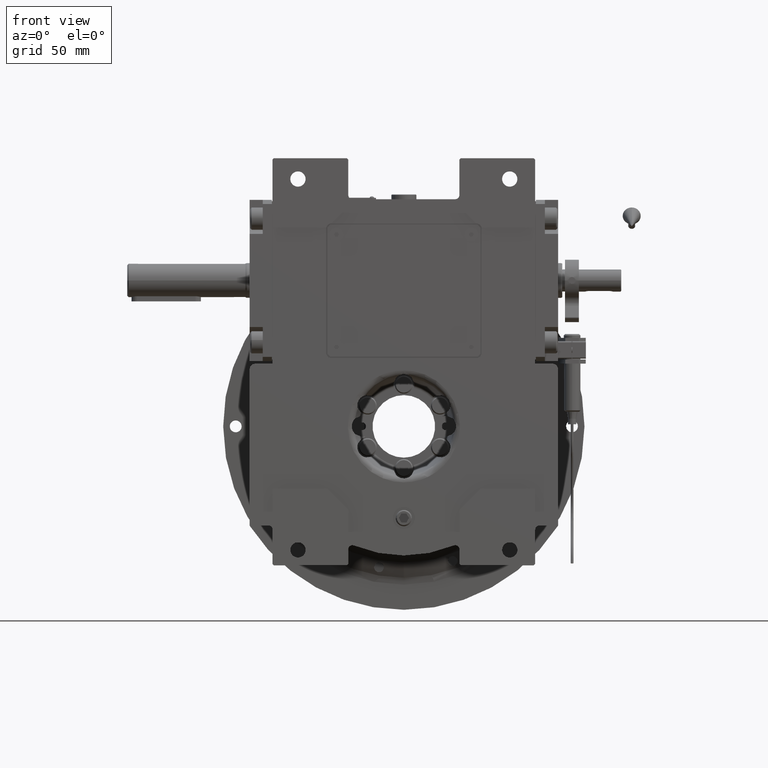
[diagram: clean part render]
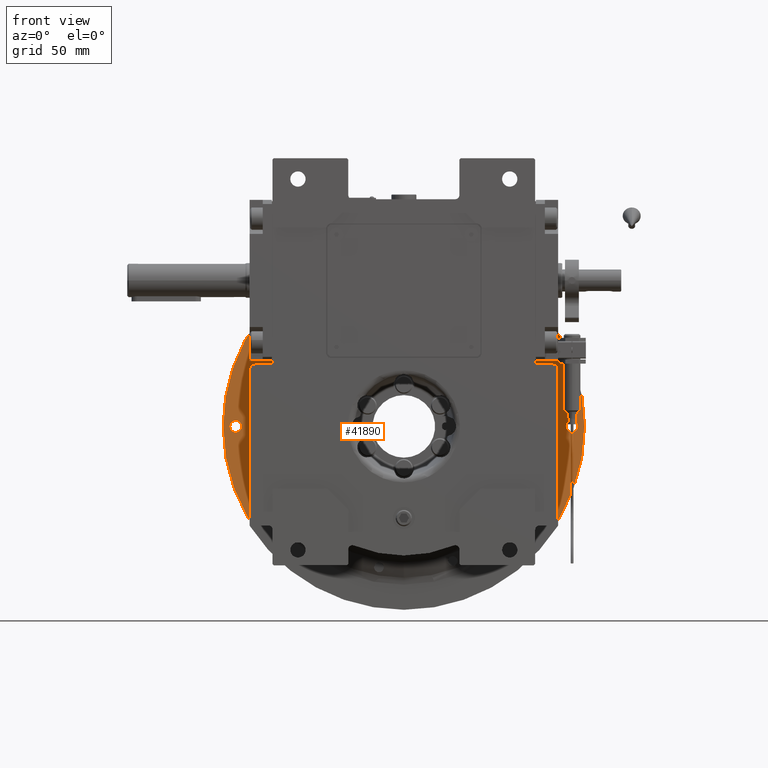
[diagram: same view with one face highlighted and labeled with its STEP entity id]
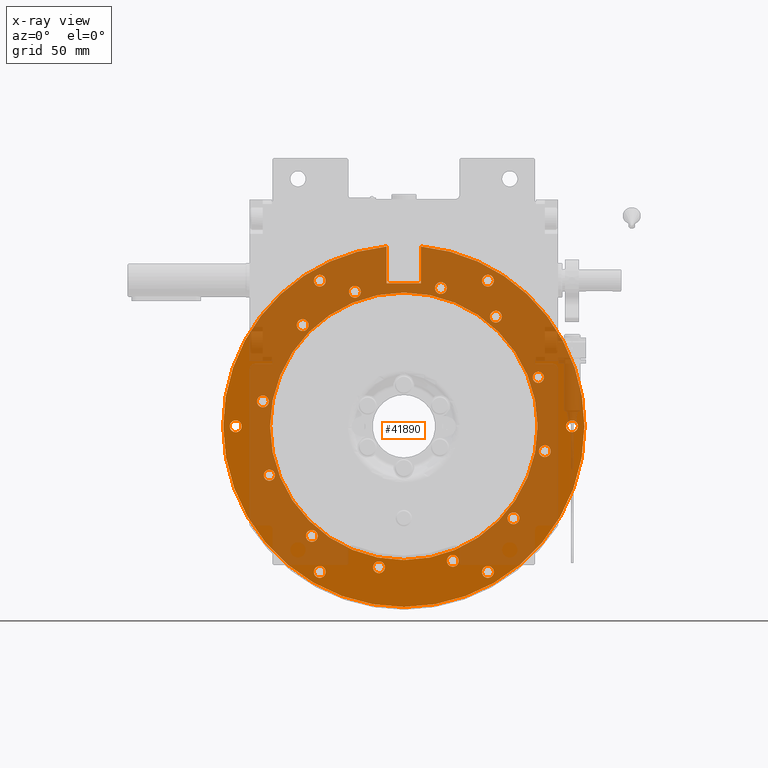
[diagram: x-ray of the same camera — body ghosted, the highlighted face saturated]
A machine part, front view. The second image highlights one B-rep face of the part: STEP entity #41890.
The next image is the same camera in x-ray: the body ghosted, the highlighted face saturated — about 69% of this face is hidden behind the body in this view.
In plain terms, the highlighted planar face has unit normal (0, 1, 0).
Its self-contained STEP definition (entity closure, byte-faithful):
#309 = ORIENTED_EDGE ( 'NONE', *, *, #68346, .T. ) ;
#544 = CARTESIAN_POINT ( 'NONE',  ( 121.0000000000000000, -8.881784197001244435E-16, 0.000000000000000000 ) ) ;
#609 = VERTEX_POINT ( 'NONE', #49818 ) ;
#833 = VERTEX_POINT ( 'NONE', #17245 ) ;
#916 = DIRECTION ( 'NONE',  ( 1.000000000000000000, 2.089831575764998299E-16, 0.000000000000000000 ) ) ;
#1162 = AXIS2_PLACEMENT_3D ( 'NONE', #4580, #27883, #14515 ) ;
#1177 = ORIENTED_EDGE ( 'NONE', *, *, #17498, .T. ) ;
#1193 = FACE_BOUND ( 'NONE', #34388, .T. ) ;
#1331 = CARTESIAN_POINT ( 'NONE',  ( 121.0000000000000000, 0.000000000000000000, 0.000000000000000000 ) ) ;
#1401 = ORIENTED_EDGE ( 'NONE', *, *, #65654, .F. ) ;
#1408 = VERTEX_POINT ( 'NONE', #64659 ) ;
#1474 = AXIS2_PLACEMENT_3D ( 'NONE', #53009, #48023, #24303 ) ;
#1929 = FACE_BOUND ( 'NONE', #7233, .T. ) ;
#1979 = DIRECTION ( 'NONE',  ( 0.000000000000000000, 0.000000000000000000, 1.000000000000000000 ) ) ;
#2312 = VERTEX_POINT ( 'NONE', #19580 ) ;
#2687 = DIRECTION ( 'NONE',  ( 1.000000000000000000, 0.000000000000000000, 0.000000000000000000 ) ) ;
#2734 = CARTESIAN_POINT ( 'NONE',  ( 66.20712379771359224, -78.90257764125479412, 0.000000000000000000 ) ) ;
#3351 = DIRECTION ( 'NONE',  ( 0.000000000000000000, 0.000000000000000000, 1.000000000000000000 ) ) ;
#3364 = ORIENTED_EDGE ( 'NONE', *, *, #24863, .T. ) ;
#3469 = DIRECTION ( 'NONE',  ( 0.000000000000000000, 0.000000000000000000, 1.000000000000000000 ) ) ;
#3835 = ORIENTED_EDGE ( 'NONE', *, *, #16696, .T. ) ;
#3968 = DIRECTION ( 'NONE',  ( -0.09507082380237159847, -0.9954705110959030101, 0.000000000000000000 ) ) ;
#4088 = AXIS2_PLACEMENT_3D ( 'NONE', #63733, #57995, #33118 ) ;
#4159 = DIRECTION ( 'NONE',  ( 0.000000000000000000, 0.000000000000000000, 1.000000000000000000 ) ) ;
#4191 = AXIS2_PLACEMENT_3D ( 'NONE', #30605, #60458, #48231 ) ;
#4513 = CIRCLE ( 'NONE', #30328, 4.250000000000003553 ) ;
#4580 = CARTESIAN_POINT ( 'NONE',  ( 78.90257764125479412, 66.20712379771359224, 0.000000000000000000 ) ) ;
#4610 = CARTESIAN_POINT ( 'NONE',  ( -121.0000000000000000, 2.220446049250314974E-14, 0.000000000000000000 ) ) ;
#4624 = CIRCLE ( 'NONE', #43738, 4.250000000000000000 ) ;
#4634 = CARTESIAN_POINT ( 'NONE',  ( 12.35920709430827813, -102.9000000000000057, 0.000000000000000000 ) ) ;
#4709 = CIRCLE ( 'NONE', #47487, 4.250000000000003553 ) ;
#4972 = VERTEX_POINT ( 'NONE', #50876 ) ;
#5226 = CARTESIAN_POINT ( 'NONE',  ( -66.20712379771349276, 78.90257764125469464, 0.000000000000000000 ) ) ;
#5251 = CARTESIAN_POINT ( 'NONE',  ( -61.95712379771349276, 78.90257764125469464, 0.000000000000000000 ) ) ;
#5284 = CIRCLE ( 'NONE', #65167, 4.000000000000003553 ) ;
#5441 = EDGE_CURVE ( 'NONE', #44427, #66545, #48637, .T. ) ;
#5444 = AXIS2_PLACEMENT_3D ( 'NONE', #70715, #48850, #41613 ) ;
#5508 = CARTESIAN_POINT ( 'NONE',  ( 26.65836164555969745, -99.49036010777399497, 0.000000000000000000 ) ) ;
#5609 = EDGE_CURVE ( 'NONE', #44389, #58014, #31188, .T. ) ;
#5739 = CIRCLE ( 'NONE', #36286, 4.250000000000003553 ) ;
#5792 = AXIS2_PLACEMENT_3D ( 'NONE', #10946, #45048, #10562 ) ;
#5894 = EDGE_CURVE ( 'NONE', #5918, #21517, #46384, .T. ) ;
#5918 = VERTEX_POINT ( 'NONE', #12390 ) ;
#6185 = CIRCLE ( 'NONE', #24523, 96.25000000000000000 ) ;
#6203 = AXIS2_PLACEMENT_3D ( 'NONE', #73087, #21034, #2687 ) ;
#6231 = CARTESIAN_POINT ( 'NONE',  ( 83.15257764125480833, 66.20712379771359224, 0.000000000000000000 ) ) ;
#6300 = ORIENTED_EDGE ( 'NONE', *, *, #41255, .T. ) ;
#6492 = CIRCLE ( 'NONE', #4088, 4.250000000000003553 ) ;
#6552 = FACE_BOUND ( 'NONE', #44873, .T. ) ;
#6659 = EDGE_CURVE ( 'NONE', #57508, #47766, #4709, .T. ) ;
#6794 = CARTESIAN_POINT ( 'NONE',  ( 22.40836164555969745, -99.49036010777399497, 0.000000000000000000 ) ) ;
#6859 = CIRCLE ( 'NONE', #19094, 4.250000000000003553 ) ;
#7064 = AXIS2_PLACEMENT_3D ( 'NONE', #49855, #21915, #20780 ) ;
#7091 = ORIENTED_EDGE ( 'NONE', *, *, #65294, .F. ) ;
#7113 = ORIENTED_EDGE ( 'NONE', *, *, #54486, .T. ) ;
#7233 = EDGE_LOOP ( 'NONE', ( #62519, #309 ) ) ;
#7822 = VERTEX_POINT ( 'NONE', #6231 ) ;
#7865 = DIRECTION ( 'NONE',  ( 0.000000000000000000, 0.000000000000000000, 1.000000000000000000 ) ) ;
#7935 = EDGE_CURVE ( 'NONE', #42597, #48542, #72099, .T. ) ;
#8457 = DIRECTION ( 'NONE',  ( 1.000000000000000000, 0.000000000000000000, 0.000000000000000000 ) ) ;
#8466 = VERTEX_POINT ( 'NONE', #13713 ) ;
#8584 = EDGE_CURVE ( 'NONE', #609, #1408, #6185, .T. ) ;
#9156 = CIRCLE ( 'NONE', #66592, 4.250000000000003553 ) ;
#9495 = CARTESIAN_POINT ( 'NONE',  ( 60.50000000000000000, -104.7890738579170034, 0.000000000000000000 ) ) ;
#9546 = DIRECTION ( 'NONE',  ( 1.000000000000000000, 0.000000000000000000, 0.000000000000000000 ) ) ;
#9639 = VERTEX_POINT ( 'NONE', #13410 ) ;
#9820 = DIRECTION ( 'NONE',  ( -1.000000000000000000, 0.000000000000000000, 0.000000000000000000 ) ) ;
#9879 = ORIENTED_EDGE ( 'NONE', *, *, #62076, .T. ) ;
#10030 = CARTESIAN_POINT ( 'NONE',  ( -12.35920709430827813, -129.4111664424673620, 0.000000000000000000 ) ) ;
#10035 = EDGE_LOOP ( 'NONE', ( #3835, #70579 ) ) ;
#10083 = ORIENTED_EDGE ( 'NONE', *, *, #62770, .T. ) ;
#10562 = DIRECTION ( 'NONE',  ( 1.000000000000000000, 0.000000000000000000, 0.000000000000000000 ) ) ;
#10944 = DIRECTION ( 'NONE',  ( 0.000000000000000000, 0.000000000000000000, 1.000000000000000000 ) ) ;
#10946 = CARTESIAN_POINT ( 'NONE',  ( -101.4351985602574047, -17.88576229969384812, 0.000000000000000000 ) ) ;
#11483 = AXIS2_PLACEMENT_3D ( 'NONE', #12928, #24438, #30895 ) ;
#11487 = CARTESIAN_POINT ( 'NONE',  ( -22.13576229969384812, 101.4351985602574047, 0.000000000000000000 ) ) ;
#11527 = DIRECTION ( 'NONE',  ( 1.000000000000000000, 0.000000000000000000, 0.000000000000000000 ) ) ;
#11551 = EDGE_LOOP ( 'NONE', ( #54832, #53223 ) ) ;
#11852 = CARTESIAN_POINT ( 'NONE',  ( 12.35920709430829945, -129.4111664424673620, 0.000000000000000000 ) ) ;
#11854 = AXIS2_PLACEMENT_3D ( 'NONE', #47890, #35623, #58995 ) ;
#12260 = DIRECTION ( 'NONE',  ( 1.000000000000000000, 0.000000000000000000, 0.000000000000000000 ) ) ;
#12390 = CARTESIAN_POINT ( 'NONE',  ( 130.0000000000000000, 0.000000000000000000, 0.000000000000000000 ) ) ;
#12649 = FACE_BOUND ( 'NONE', #69049, .T. ) ;
#12749 = EDGE_LOOP ( 'NONE', ( #73496, #3364, #62085, #70427, #56320, #29260 ) ) ;
#12886 = ORIENTED_EDGE ( 'NONE', *, *, #15881, .T. ) ;
#12928 = CARTESIAN_POINT ( 'NONE',  ( 101.4351985602574047, 17.88576229969384812, 0.000000000000000000 ) ) ;
#13209 = VERTEX_POINT ( 'NONE', #11487 ) ;
#13381 = FACE_BOUND ( 'NONE', #24316, .T. ) ;
#13410 = CARTESIAN_POINT ( 'NONE',  ( 30.97807476254390124, 96.78833994094861737, 0.000000000000000000 ) ) ;
#13632 = VERTEX_POINT ( 'NONE', #31994 ) ;
#13675 = CARTESIAN_POINT ( 'NONE',  ( 26.65836164555969745, -99.49036010777399497, 0.000000000000000000 ) ) ;
#13713 = CARTESIAN_POINT ( 'NONE',  ( -64.75000000000000000, 104.7890738579170034, 0.000000000000000000 ) ) ;
#13725 = CARTESIAN_POINT ( 'NONE',  ( -12.35920709430827813, -102.9000000000000057, 0.000000000000000000 ) ) ;
#14515 = DIRECTION ( 'NONE',  ( 1.000000000000000000, 0.000000000000000000, 0.000000000000000000 ) ) ;
#14719 = EDGE_LOOP ( 'NONE', ( #32247, #31600 ) ) ;
#15096 = EDGE_CURVE ( 'NONE', #48542, #42597, #9156, .T. ) ;
#15544 = VERTEX_POINT ( 'NONE', #57837 ) ;
#15576 = VERTEX_POINT ( 'NONE', #40222 ) ;
#15784 = EDGE_LOOP ( 'NONE', ( #12886, #41016 ) ) ;
#15876 = CIRCLE ( 'NONE', #74498, 4.250000000000000000 ) ;
#15881 = EDGE_CURVE ( 'NONE', #69611, #39531, #33601, .T. ) ;
#15994 = DIRECTION ( 'NONE',  ( 0.000000000000000000, 0.000000000000000000, 1.000000000000000000 ) ) ;
#15997 = CARTESIAN_POINT ( 'NONE',  ( 0.000000000000000000, 0.000000000000000000, 0.000000000000000000 ) ) ;
#16236 = EDGE_LOOP ( 'NONE', ( #40526, #53640 ) ) ;
#16409 = VERTEX_POINT ( 'NONE', #20948 ) ;
#16589 = DIRECTION ( 'NONE',  ( 1.000000000000000000, 0.000000000000000000, 0.000000000000000000 ) ) ;
#16696 = EDGE_CURVE ( 'NONE', #47766, #57508, #6859, .T. ) ;
#16847 = ORIENTED_EDGE ( 'NONE', *, *, #15096, .T. ) ;
#17245 = CARTESIAN_POINT ( 'NONE',  ( -56.25000000000000000, 104.7890738579170034, 0.000000000000000000 ) ) ;
#17252 = CARTESIAN_POINT ( 'NONE',  ( -60.50000000000000000, 104.7890738579170034, 0.000000000000000000 ) ) ;
#17277 = DIRECTION ( 'NONE',  ( 0.000000000000000000, 0.000000000000000000, 1.000000000000000000 ) ) ;
#17360 = CARTESIAN_POINT ( 'NONE',  ( 35.22807476254389769, 96.78833994094861737, 0.000000000000000000 ) ) ;
#17498 = EDGE_CURVE ( 'NONE', #833, #8466, #26456, .T. ) ;
#17633 = CARTESIAN_POINT ( 'NONE',  ( 56.25000000000000000, -104.7890738579170034, 0.000000000000000000 ) ) ;
#17662 = CIRCLE ( 'NONE', #5444, 4.000000000000003553 ) ;
#17723 = VERTEX_POINT ( 'NONE', #5251 ) ;
#17916 = CARTESIAN_POINT ( 'NONE',  ( 74.65257764125480833, 66.20712379771359224, 0.000000000000000000 ) ) ;
#17933 = CIRCLE ( 'NONE', #37463, 130.0000000000000000 ) ;
#18411 = FACE_BOUND ( 'NONE', #57361, .T. ) ;
#18706 = DIRECTION ( 'NONE',  ( 0.000000000000000000, 0.000000000000000000, 1.000000000000000000 ) ) ;
#18761 = CARTESIAN_POINT ( 'NONE',  ( 60.50000000000000000, 104.7890738579170034, 0.000000000000000000 ) ) ;
#18790 = FACE_BOUND ( 'NONE', #11551, .T. ) ;
#18978 = DIRECTION ( 'NONE',  ( 1.000000000000000000, -5.224578939412495427E-15, 0.000000000000000000 ) ) ;
#19094 = AXIS2_PLACEMENT_3D ( 'NONE', #70671, #7865, #18978 ) ;
#19155 = FACE_BOUND ( 'NONE', #15784, .T. ) ;
#19580 = CARTESIAN_POINT ( 'NONE',  ( -100.7883399409486032, 35.22807476254389769, 0.000000000000000000 ) ) ;
#19937 = VECTOR ( 'NONE', #36928, 1000.000000000000000 ) ;
#20124 = AXIS2_PLACEMENT_3D ( 'NONE', #61998, #3469, #34016 ) ;
#20209 = CARTESIAN_POINT ( 'NONE',  ( -60.50000000000000000, 104.7890738579170034, 0.000000000000000000 ) ) ;
#20503 = CIRCLE ( 'NONE', #7064, 4.250000000000003553 ) ;
#20706 = EDGE_CURVE ( 'NONE', #66545, #44427, #71299, .T. ) ;
#20761 = ORIENTED_EDGE ( 'NONE', *, *, #37771, .F. ) ;
#20780 = DIRECTION ( 'NONE',  ( 1.000000000000000000, 0.000000000000000000, 0.000000000000000000 ) ) ;
#20871 = VECTOR ( 'NONE', #40427, 1000.000000000000000 ) ;
#20948 = CARTESIAN_POINT ( 'NONE',  ( 105.6851985602573905, 17.88576229969384812, 0.000000000000000000 ) ) ;
#21034 = DIRECTION ( 'NONE',  ( 0.000000000000000000, 0.000000000000000000, 1.000000000000000000 ) ) ;
#21276 = AXIS2_PLACEMENT_3D ( 'NONE', #13675, #31265, #49279 ) ;
#21377 = VERTEX_POINT ( 'NONE', #38681 ) ;
#21517 = VERTEX_POINT ( 'NONE', #11852 ) ;
#21563 = EDGE_CURVE ( 'NONE', #42638, #22704, #72533, .T. ) ;
#21583 = AXIS2_PLACEMENT_3D ( 'NONE', #26038, #31379, #32901 ) ;
#21915 = DIRECTION ( 'NONE',  ( 0.000000000000000000, 0.000000000000000000, 1.000000000000000000 ) ) ;
#21990 = DIRECTION ( 'NONE',  ( 0.000000000000000000, 0.000000000000000000, 1.000000000000000000 ) ) ;
#22033 = DIRECTION ( 'NONE',  ( 0.000000000000000000, 0.000000000000000000, 1.000000000000000000 ) ) ;
#22139 = EDGE_LOOP ( 'NONE', ( #72827, #40682 ) ) ;
#22159 = ORIENTED_EDGE ( 'NONE', *, *, #7935, .T. ) ;
#22350 = CARTESIAN_POINT ( 'NONE',  ( -96.78833994094861737, 35.22807476254389769, 0.000000000000000000 ) ) ;
#22704 = VERTEX_POINT ( 'NONE', #24501 ) ;
#22837 = CARTESIAN_POINT ( 'NONE',  ( 12.35920709430827813, -129.4111664424673620, 0.000000000000000000 ) ) ;
#23832 = ORIENTED_EDGE ( 'NONE', *, *, #66266, .T. ) ;
#23961 = CARTESIAN_POINT ( 'NONE',  ( 70.45712379771350697, -78.90257764125479412, 0.000000000000000000 ) ) ;
#24303 = DIRECTION ( 'NONE',  ( -1.000000000000000000, 0.000000000000000000, 0.000000000000000000 ) ) ;
#24316 = EDGE_LOOP ( 'NONE', ( #30116, #56663 ) ) ;
#24438 = DIRECTION ( 'NONE',  ( 0.000000000000000000, 0.000000000000000000, 1.000000000000000000 ) ) ;
#24501 = CARTESIAN_POINT ( 'NONE',  ( 56.25000000000000000, 104.7890738579170034, 0.000000000000000000 ) ) ;
#24520 = FACE_BOUND ( 'NONE', #37872, .T. ) ;
#24523 = AXIS2_PLACEMENT_3D ( 'NONE', #15997, #4159, #63065 ) ;
#24723 = DIRECTION ( 'NONE',  ( 0.000000000000000000, 0.000000000000000000, 1.000000000000000000 ) ) ;
#24863 = EDGE_CURVE ( 'NONE', #44389, #4972, #32609, .T. ) ;
#25244 = FACE_OUTER_BOUND ( 'NONE', #12749, .T. ) ;
#25294 = CARTESIAN_POINT ( 'NONE',  ( -17.88576229969384812, 101.4351985602574047, 0.000000000000000000 ) ) ;
#25381 = DIRECTION ( 'NONE',  ( -1.000000000000000000, 0.000000000000000000, 0.000000000000000000 ) ) ;
#25382 = CARTESIAN_POINT ( 'NONE',  ( -97.18519856025739045, -17.88576229969384812, 0.000000000000000000 ) ) ;
#25502 = CARTESIAN_POINT ( 'NONE',  ( 64.75000000000000000, -104.7890738579170034, 0.000000000000000000 ) ) ;
#25668 = AXIS2_PLACEMENT_3D ( 'NONE', #5226, #10944, #28536 ) ;
#26038 = CARTESIAN_POINT ( 'NONE',  ( -72.83199846221440055, -72.83199846221440055, 0.000000000000000000 ) ) ;
#26172 = VERTEX_POINT ( 'NONE', #39599 ) ;
#26243 = DIRECTION ( 'NONE',  ( -1.000000000000000000, 0.000000000000000000, 0.000000000000000000 ) ) ;
#26414 = EDGE_CURVE ( 'NONE', #56164, #61758, #4513, .T. ) ;
#26456 = CIRCLE ( 'NONE', #50871, 4.250000000000003553 ) ;
#26873 = AXIS2_PLACEMENT_3D ( 'NONE', #54629, #3351, #50392 ) ;
#27332 = ORIENTED_EDGE ( 'NONE', *, *, #52912, .T. ) ;
#27479 = CIRCLE ( 'NONE', #20124, 4.250000000000003553 ) ;
#27513 = EDGE_CURVE ( 'NONE', #9639, #61720, #4624, .T. ) ;
#27610 = VERTEX_POINT ( 'NONE', #75196 ) ;
#27883 = DIRECTION ( 'NONE',  ( 0.000000000000000000, 0.000000000000000000, 1.000000000000000000 ) ) ;
#28224 = ORIENTED_EDGE ( 'NONE', *, *, #57095, .F. ) ;
#28337 = CARTESIAN_POINT ( 'NONE',  ( 61.95712379771349276, -78.90257764125479412, 0.000000000000000000 ) ) ;
#28378 = DIRECTION ( 'NONE',  ( 0.000000000000000000, 0.000000000000000000, -1.000000000000000000 ) ) ;
#28536 = DIRECTION ( 'NONE',  ( 1.000000000000000000, 0.000000000000000000, 0.000000000000000000 ) ) ;
#28834 = CARTESIAN_POINT ( 'NONE',  ( 2.309263891220324973E-14, 2.248201624865940811E-15, 0.000000000000000000 ) ) ;
#28986 = VERTEX_POINT ( 'NONE', #36832 ) ;
#29260 = ORIENTED_EDGE ( 'NONE', *, *, #37381, .T. ) ;
#29315 = LINE ( 'NONE', #22837, #20871 ) ;
#29384 = EDGE_LOOP ( 'NONE', ( #75533, #33021 ) ) ;
#29406 = CIRCLE ( 'NONE', #34317, 4.250000000000003553 ) ;
#29460 = DIRECTION ( 'NONE',  ( 0.000000000000000000, 0.000000000000000000, 1.000000000000000000 ) ) ;
#29471 = DIRECTION ( 'NONE',  ( 0.000000000000000000, 0.000000000000000000, 1.000000000000000000 ) ) ;
#29729 = CIRCLE ( 'NONE', #72525, 4.000000000000003553 ) ;
#29866 = FACE_BOUND ( 'NONE', #14719, .T. ) ;
#29884 = CARTESIAN_POINT ( 'NONE',  ( 0.000000000000000000, 0.000000000000000000, 0.000000000000000000 ) ) ;
#29912 = EDGE_CURVE ( 'NONE', #60338, #15544, #74528, .T. ) ;
#30116 = ORIENTED_EDGE ( 'NONE', *, *, #63107, .T. ) ;
#30328 = AXIS2_PLACEMENT_3D ( 'NONE', #1331, #42630, #25381 ) ;
#30605 = CARTESIAN_POINT ( 'NONE',  ( -101.4351985602574047, -17.88576229969384812, 0.000000000000000000 ) ) ;
#30895 = DIRECTION ( 'NONE',  ( -1.000000000000000000, 0.000000000000000000, 0.000000000000000000 ) ) ;
#31118 = CARTESIAN_POINT ( 'NONE',  ( -125.2500000000000000, 7.408868440625380834E-15, 0.000000000000000000 ) ) ;
#31136 = DIRECTION ( 'NONE',  ( 0.000000000000000000, 0.000000000000000000, 1.000000000000000000 ) ) ;
#31183 = EDGE_CURVE ( 'NONE', #13209, #48296, #41660, .T. ) ;
#31188 = LINE ( 'NONE', #72169, #19937 ) ;
#31265 = DIRECTION ( 'NONE',  ( 0.000000000000000000, 0.000000000000000000, 1.000000000000000000 ) ) ;
#31345 = FACE_BOUND ( 'NONE', #74963, .T. ) ;
#31379 = DIRECTION ( 'NONE',  ( 0.000000000000000000, 0.000000000000000000, 1.000000000000000000 ) ) ;
#31600 = ORIENTED_EDGE ( 'NONE', *, *, #66445, .T. ) ;
#31994 = CARTESIAN_POINT ( 'NONE',  ( -92.78833994094860316, 35.22807476254389769, 0.000000000000000000 ) ) ;
#32247 = ORIENTED_EDGE ( 'NONE', *, *, #74457, .T. ) ;
#32556 = AXIS2_PLACEMENT_3D ( 'NONE', #32600, #28378, #62483 ) ;
#32593 = VERTEX_POINT ( 'NONE', #62518 ) ;
#32600 = CARTESIAN_POINT ( 'NONE',  ( 2.309263891220324973E-14, 2.248201624865940811E-15, 0.000000000000000000 ) ) ;
#32609 = CIRCLE ( 'NONE', #32556, 130.0000000000000000 ) ;
#32901 = DIRECTION ( 'NONE',  ( -1.000000000000000000, 0.000000000000000000, 0.000000000000000000 ) ) ;
#33021 = ORIENTED_EDGE ( 'NONE', *, *, #5441, .T. ) ;
#33118 = DIRECTION ( 'NONE',  ( 1.000000000000000000, 0.000000000000000000, 0.000000000000000000 ) ) ;
#33494 = CARTESIAN_POINT ( 'NONE',  ( -116.7500000000000000, 7.582360070504590539E-15, 0.000000000000000000 ) ) ;
#33601 = CIRCLE ( 'NONE', #61760, 4.250000000000003553 ) ;
#33955 = CARTESIAN_POINT ( 'NONE',  ( -35.22807476254394743, -96.78833994094861737, 0.000000000000000000 ) ) ;
#34014 = VERTEX_POINT ( 'NONE', #25502 ) ;
#34016 = DIRECTION ( 'NONE',  ( -1.000000000000000000, 0.000000000000000000, 0.000000000000000000 ) ) ;
#34121 = ORIENTED_EDGE ( 'NONE', *, *, #69296, .T. ) ;
#34317 = AXIS2_PLACEMENT_3D ( 'NONE', #17360, #21990, #68691 ) ;
#34388 = EDGE_LOOP ( 'NONE', ( #7091, #20761 ) ) ;
#34845 = CARTESIAN_POINT ( 'NONE',  ( 125.2500000000000000, -2.296131183662585222E-15, 0.000000000000000000 ) ) ;
#35249 = AXIS2_PLACEMENT_3D ( 'NONE', #64555, #24723, #48079 ) ;
#35428 = CIRCLE ( 'NONE', #63572, 4.250000000000000000 ) ;
#35623 = DIRECTION ( 'NONE',  ( 0.000000000000000000, 0.000000000000000000, -1.000000000000000000 ) ) ;
#35801 = AXIS2_PLACEMENT_3D ( 'NONE', #33955, #15994, #39325 ) ;
#35901 = CIRCLE ( 'NONE', #71330, 4.250000000000003553 ) ;
#35977 = FACE_BOUND ( 'NONE', #10035, .T. ) ;
#36149 = DIRECTION ( 'NONE',  ( 1.000000000000000000, 0.000000000000000000, 0.000000000000000000 ) ) ;
#36286 = AXIS2_PLACEMENT_3D ( 'NONE', #53011, #31136, #54509 ) ;
#36623 = AXIS2_PLACEMENT_3D ( 'NONE', #2734, #1979, #8457 ) ;
#36832 = CARTESIAN_POINT ( 'NONE',  ( 12.35920709430827813, -102.9000000000000057, 0.000000000000000000 ) ) ;
#36928 = DIRECTION ( 'NONE',  ( 0.000000000000000000, 1.000000000000000000, 0.000000000000000000 ) ) ;
#37300 = VERTEX_POINT ( 'NONE', #56794 ) ;
#37381 = EDGE_CURVE ( 'NONE', #28986, #58014, #39426, .T. ) ;
#37463 = AXIS2_PLACEMENT_3D ( 'NONE', #73968, #74347, #3968 ) ;
#37771 = EDGE_CURVE ( 'NONE', #15576, #21377, #65646, .T. ) ;
#37814 = DIRECTION ( 'NONE',  ( 0.000000000000000000, 0.000000000000000000, 1.000000000000000000 ) ) ;
#37872 = EDGE_LOOP ( 'NONE', ( #1401, #28224 ) ) ;
#38518 = CARTESIAN_POINT ( 'NONE',  ( -56.25000000000000000, -104.7890738579170034, 0.000000000000000000 ) ) ;
#38681 = CARTESIAN_POINT ( 'NONE',  ( 100.7883399409486032, -35.22807476254389769, 0.000000000000000000 ) ) ;
#38757 = EDGE_CURVE ( 'NONE', #15544, #60338, #20503, .T. ) ;
#38758 = CIRCLE ( 'NONE', #5792, 4.250000000000003553 ) ;
#39296 = CIRCLE ( 'NONE', #1474, 4.250000000000003553 ) ;
#39325 = DIRECTION ( 'NONE',  ( 1.000000000000000000, 0.000000000000000000, 0.000000000000000000 ) ) ;
#39426 = LINE ( 'NONE', #4634, #64373 ) ;
#39531 = VERTEX_POINT ( 'NONE', #46109 ) ;
#39599 = CARTESIAN_POINT ( 'NONE',  ( -105.6851985602573905, -17.88576229969384812, 0.000000000000000000 ) ) ;
#39611 = CIRCLE ( 'NONE', #73872, 96.25000000000000000 ) ;
#40222 = CARTESIAN_POINT ( 'NONE',  ( 92.78833994094860316, -35.22807476254389769, 0.000000000000000000 ) ) ;
#40401 = DIRECTION ( 'NONE',  ( 0.000000000000000000, 0.000000000000000000, -1.000000000000000000 ) ) ;
#40427 = DIRECTION ( 'NONE',  ( 0.000000000000000000, 1.000000000000000000, 0.000000000000000000 ) ) ;
#40526 = ORIENTED_EDGE ( 'NONE', *, *, #59785, .T. ) ;
#40682 = ORIENTED_EDGE ( 'NONE', *, *, #29912, .T. ) ;
#40826 = CIRCLE ( 'NONE', #4191, 4.250000000000003553 ) ;
#41016 = ORIENTED_EDGE ( 'NONE', *, *, #58914, .T. ) ;
#41116 = EDGE_CURVE ( 'NONE', #55405, #7822, #48907, .T. ) ;
#41255 = EDGE_CURVE ( 'NONE', #17723, #32593, #58696, .T. ) ;
#41613 = DIRECTION ( 'NONE',  ( -1.000000000000000000, 0.000000000000000000, 0.000000000000000000 ) ) ;
#41660 = CIRCLE ( 'NONE', #58753, 4.250000000000000000 ) ;
#41890 = ADVANCED_FACE ( 'NONE', ( #31345, #1193, #24520, #58978, #13381, #6552, #29866, #47876, #47498, #18411, #53981, #65105, #1929, #71582, #18790, #65481, #12649, #35977, #19155, #25244 ), #48603, .F. ) ;
#41996 = ORIENTED_EDGE ( 'NONE', *, *, #21563, .T. ) ;
#42597 = VERTEX_POINT ( 'NONE', #23961 ) ;
#42630 = DIRECTION ( 'NONE',  ( 0.000000000000000000, 0.000000000000000000, 1.000000000000000000 ) ) ;
#42638 = VERTEX_POINT ( 'NONE', #43449 ) ;
#43449 = CARTESIAN_POINT ( 'NONE',  ( 64.75000000000000000, 104.7890738579170034, 0.000000000000000000 ) ) ;
#43631 = EDGE_CURVE ( 'NONE', #21517, #28986, #29315, .T. ) ;
#43738 = AXIS2_PLACEMENT_3D ( 'NONE', #74444, #22033, #26243 ) ;
#44389 = VERTEX_POINT ( 'NONE', #10030 ) ;
#44427 = VERTEX_POINT ( 'NONE', #62480 ) ;
#44667 = DIRECTION ( 'NONE',  ( 0.000000000000000000, 0.000000000000000000, 1.000000000000000000 ) ) ;
#44763 = VERTEX_POINT ( 'NONE', #25382 ) ;
#44873 = EDGE_LOOP ( 'NONE', ( #6300, #10083 ) ) ;
#45048 = DIRECTION ( 'NONE',  ( 0.000000000000000000, 0.000000000000000000, 1.000000000000000000 ) ) ;
#45231 = CARTESIAN_POINT ( 'NONE',  ( 39.47807476254389769, 96.78833994094861737, 0.000000000000000000 ) ) ;
#45930 = EDGE_LOOP ( 'NONE', ( #22159, #16847 ) ) ;
#45968 = DIRECTION ( 'NONE',  ( 0.000000000000000000, 0.000000000000000000, 1.000000000000000000 ) ) ;
#46109 = CARTESIAN_POINT ( 'NONE',  ( -64.75000000000000000, -104.7890738579170034, 0.000000000000000000 ) ) ;
#46384 = CIRCLE ( 'NONE', #68424, 130.0000000000000000 ) ;
#47311 = CARTESIAN_POINT ( 'NONE',  ( -66.20712379771349276, 78.90257764125469464, 0.000000000000000000 ) ) ;
#47487 = AXIS2_PLACEMENT_3D ( 'NONE', #4610, #56645, #74625 ) ;
#47498 = FACE_BOUND ( 'NONE', #45930, .T. ) ;
#47766 = VERTEX_POINT ( 'NONE', #33494 ) ;
#47876 = FACE_BOUND ( 'NONE', #29384, .T. ) ;
#47890 = CARTESIAN_POINT ( 'NONE',  ( 96.78833994094861737, -35.22807476254389769, 0.000000000000000000 ) ) ;
#47987 = DIRECTION ( 'NONE',  ( 0.000000000000000000, 0.000000000000000000, -1.000000000000000000 ) ) ;
#48023 = DIRECTION ( 'NONE',  ( 0.000000000000000000, 0.000000000000000000, 1.000000000000000000 ) ) ;
#48079 = DIRECTION ( 'NONE',  ( -1.000000000000000000, 0.000000000000000000, 0.000000000000000000 ) ) ;
#48231 = DIRECTION ( 'NONE',  ( -1.000000000000000000, 0.000000000000000000, 0.000000000000000000 ) ) ;
#48296 = VERTEX_POINT ( 'NONE', #52926 ) ;
#48346 = ORIENTED_EDGE ( 'NONE', *, *, #50851, .T. ) ;
#48542 = VERTEX_POINT ( 'NONE', #28337 ) ;
#48603 = PLANE ( 'NONE',  #6203 ) ;
#48637 = CIRCLE ( 'NONE', #35249, 4.249999999999996447 ) ;
#48655 = DIRECTION ( 'NONE',  ( 0.000000000000000000, 0.000000000000000000, 1.000000000000000000 ) ) ;
#48850 = DIRECTION ( 'NONE',  ( 0.000000000000000000, 0.000000000000000000, -1.000000000000000000 ) ) ;
#48907 = CIRCLE ( 'NONE', #26873, 4.250000000000003553 ) ;
#49279 = DIRECTION ( 'NONE',  ( -1.000000000000000000, 0.000000000000000000, 0.000000000000000000 ) ) ;
#49497 = EDGE_LOOP ( 'NONE', ( #41996, #34121 ) ) ;
#49818 = CARTESIAN_POINT ( 'NONE',  ( -96.25000000000000000, -7.858150294528849717E-15, 0.000000000000000000 ) ) ;
#49855 = CARTESIAN_POINT ( 'NONE',  ( -72.83199846221440055, -72.83199846221440055, 0.000000000000000000 ) ) ;
#50233 = AXIS2_PLACEMENT_3D ( 'NONE', #47311, #64920, #65303 ) ;
#50392 = DIRECTION ( 'NONE',  ( -1.000000000000000000, 0.000000000000000000, 0.000000000000000000 ) ) ;
#50749 = ORIENTED_EDGE ( 'NONE', *, *, #68936, .T. ) ;
#50851 = EDGE_CURVE ( 'NONE', #34014, #56643, #70966, .T. ) ;
#50855 = CARTESIAN_POINT ( 'NONE',  ( -30.97807476254395098, -96.78833994094861737, 0.000000000000000000 ) ) ;
#50871 = AXIS2_PLACEMENT_3D ( 'NONE', #20209, #18706, #66159 ) ;
#50876 = CARTESIAN_POINT ( 'NONE',  ( -130.0000000000000000, 1.592040838891559450E-14, 0.000000000000000000 ) ) ;
#51264 = CARTESIAN_POINT ( 'NONE',  ( 96.78833994094861737, -35.22807476254389769, 0.000000000000000000 ) ) ;
#51528 = ORIENTED_EDGE ( 'NONE', *, *, #8584, .T. ) ;
#52435 = VERTEX_POINT ( 'NONE', #6794 ) ;
#52912 = EDGE_CURVE ( 'NONE', #56643, #34014, #39296, .T. ) ;
#52926 = CARTESIAN_POINT ( 'NONE',  ( -13.63576229969382148, 101.4351985602574047, 0.000000000000000000 ) ) ;
#53009 = CARTESIAN_POINT ( 'NONE',  ( 60.50000000000000000, -104.7890738579170034, 0.000000000000000000 ) ) ;
#53011 = CARTESIAN_POINT ( 'NONE',  ( -60.50000000000000000, -104.7890738579170034, 0.000000000000000000 ) ) ;
#53223 = ORIENTED_EDGE ( 'NONE', *, *, #26414, .T. ) ;
#53333 = DIRECTION ( 'NONE',  ( 0.000000000000000000, 0.000000000000000000, 1.000000000000000000 ) ) ;
#53640 = ORIENTED_EDGE ( 'NONE', *, *, #31183, .T. ) ;
#53784 = CARTESIAN_POINT ( 'NONE',  ( -77.08199846221440055, -72.83199846221440055, 0.000000000000000000 ) ) ;
#53981 = FACE_BOUND ( 'NONE', #16236, .T. ) ;
#54270 = CIRCLE ( 'NONE', #21276, 4.250000000000000000 ) ;
#54486 = EDGE_CURVE ( 'NONE', #16409, #27610, #6492, .T. ) ;
#54509 = DIRECTION ( 'NONE',  ( -1.000000000000000000, 0.000000000000000000, 0.000000000000000000 ) ) ;
#54629 = CARTESIAN_POINT ( 'NONE',  ( 78.90257764125479412, 66.20712379771359224, 0.000000000000000000 ) ) ;
#54832 = ORIENTED_EDGE ( 'NONE', *, *, #63376, .T. ) ;
#55405 = VERTEX_POINT ( 'NONE', #17916 ) ;
#55854 = DIRECTION ( 'NONE',  ( 0.000000000000000000, 0.000000000000000000, 1.000000000000000000 ) ) ;
#56164 = VERTEX_POINT ( 'NONE', #62164 ) ;
#56320 = ORIENTED_EDGE ( 'NONE', *, *, #43631, .T. ) ;
#56643 = VERTEX_POINT ( 'NONE', #17633 ) ;
#56645 = DIRECTION ( 'NONE',  ( 0.000000000000000000, 0.000000000000000000, 1.000000000000000000 ) ) ;
#56663 = ORIENTED_EDGE ( 'NONE', *, *, #27513, .T. ) ;
#56794 = CARTESIAN_POINT ( 'NONE',  ( 30.90836164555969745, -99.49036010777399497, 0.000000000000000000 ) ) ;
#56880 = CARTESIAN_POINT ( 'NONE',  ( 66.20712379771359224, -78.90257764125479412, 0.000000000000000000 ) ) ;
#57095 = EDGE_CURVE ( 'NONE', #2312, #13632, #17662, .T. ) ;
#57361 = EDGE_LOOP ( 'NONE', ( #9879, #60749 ) ) ;
#57508 = VERTEX_POINT ( 'NONE', #31118 ) ;
#57837 = CARTESIAN_POINT ( 'NONE',  ( -68.58199846221440055, -72.83199846221440055, 0.000000000000000000 ) ) ;
#57995 = DIRECTION ( 'NONE',  ( 0.000000000000000000, 0.000000000000000000, 1.000000000000000000 ) ) ;
#58014 = VERTEX_POINT ( 'NONE', #13725 ) ;
#58332 = DIRECTION ( 'NONE',  ( -0.09507082380237159847, -0.9954705110959030101, 0.000000000000000000 ) ) ;
#58696 = CIRCLE ( 'NONE', #25668, 4.250000000000003553 ) ;
#58753 = AXIS2_PLACEMENT_3D ( 'NONE', #25294, #48655, #66280 ) ;
#58914 = EDGE_CURVE ( 'NONE', #39531, #69611, #5739, .T. ) ;
#58963 = CARTESIAN_POINT ( 'NONE',  ( -17.88576229969384812, 101.4351985602574047, 0.000000000000000000 ) ) ;
#58978 = FACE_BOUND ( 'NONE', #74571, .T. ) ;
#58995 = DIRECTION ( 'NONE',  ( -1.000000000000000000, 0.000000000000000000, 0.000000000000000000 ) ) ;
#59098 = AXIS2_PLACEMENT_3D ( 'NONE', #18761, #29460, #59697 ) ;
#59144 = ORIENTED_EDGE ( 'NONE', *, *, #68327, .T. ) ;
#59697 = DIRECTION ( 'NONE',  ( 1.000000000000000000, 0.000000000000000000, 0.000000000000000000 ) ) ;
#59785 = EDGE_CURVE ( 'NONE', #48296, #13209, #15876, .T. ) ;
#60338 = VERTEX_POINT ( 'NONE', #53784 ) ;
#60458 = DIRECTION ( 'NONE',  ( 0.000000000000000000, 0.000000000000000000, 1.000000000000000000 ) ) ;
#60527 = EDGE_CURVE ( 'NONE', #37300, #52435, #35428, .T. ) ;
#60749 = ORIENTED_EDGE ( 'NONE', *, *, #41116, .T. ) ;
#61720 = VERTEX_POINT ( 'NONE', #45231 ) ;
#61758 = VERTEX_POINT ( 'NONE', #34845 ) ;
#61760 = AXIS2_PLACEMENT_3D ( 'NONE', #73089, #55854, #9546 ) ;
#61998 = CARTESIAN_POINT ( 'NONE',  ( 60.50000000000000000, 104.7890738579170034, 0.000000000000000000 ) ) ;
#62076 = EDGE_CURVE ( 'NONE', #7822, #55405, #64787, .T. ) ;
#62085 = ORIENTED_EDGE ( 'NONE', *, *, #71409, .T. ) ;
#62164 = CARTESIAN_POINT ( 'NONE',  ( 116.7500000000000000, -2.469622813541795715E-15, 0.000000000000000000 ) ) ;
#62480 = CARTESIAN_POINT ( 'NONE',  ( -39.47807476254394743, -96.78833994094861737, 0.000000000000000000 ) ) ;
#62483 = DIRECTION ( 'NONE',  ( -0.09507082380237159847, -0.9954705110959030101, 0.000000000000000000 ) ) ;
#62518 = CARTESIAN_POINT ( 'NONE',  ( -70.45712379771350697, 78.90257764125469464, 0.000000000000000000 ) ) ;
#62519 = ORIENTED_EDGE ( 'NONE', *, *, #60527, .T. ) ;
#62770 = EDGE_CURVE ( 'NONE', #32593, #17723, #63671, .T. ) ;
#63065 = DIRECTION ( 'NONE',  ( -1.000000000000000000, 0.000000000000000000, 0.000000000000000000 ) ) ;
#63107 = EDGE_CURVE ( 'NONE', #61720, #9639, #29406, .T. ) ;
#63376 = EDGE_CURVE ( 'NONE', #61758, #56164, #74707, .T. ) ;
#63536 = DIRECTION ( 'NONE',  ( -1.000000000000000000, 0.000000000000000000, 0.000000000000000000 ) ) ;
#63572 = AXIS2_PLACEMENT_3D ( 'NONE', #5508, #74382, #64413 ) ;
#63671 = CIRCLE ( 'NONE', #50233, 4.250000000000003553 ) ;
#63733 = CARTESIAN_POINT ( 'NONE',  ( 101.4351985602574047, 17.88576229969384812, 0.000000000000000000 ) ) ;
#64373 = VECTOR ( 'NONE', #63536, 1000.000000000000000 ) ;
#64413 = DIRECTION ( 'NONE',  ( 1.000000000000000000, 0.000000000000000000, 0.000000000000000000 ) ) ;
#64555 = CARTESIAN_POINT ( 'NONE',  ( -35.22807476254394743, -96.78833994094861737, 0.000000000000000000 ) ) ;
#64659 = CARTESIAN_POINT ( 'NONE',  ( 96.25000000000000000, 3.929075147264424070E-15, 0.000000000000000000 ) ) ;
#64787 = CIRCLE ( 'NONE', #1162, 4.250000000000003553 ) ;
#64920 = DIRECTION ( 'NONE',  ( 0.000000000000000000, 0.000000000000000000, 1.000000000000000000 ) ) ;
#65105 = FACE_BOUND ( 'NONE', #22139, .T. ) ;
#65167 = AXIS2_PLACEMENT_3D ( 'NONE', #51264, #40401, #36149 ) ;
#65294 = EDGE_CURVE ( 'NONE', #21377, #15576, #5284, .T. ) ;
#65303 = DIRECTION ( 'NONE',  ( -1.000000000000000000, 0.000000000000000000, 0.000000000000000000 ) ) ;
#65481 = FACE_BOUND ( 'NONE', #49497, .T. ) ;
#65646 = CIRCLE ( 'NONE', #11854, 4.000000000000003553 ) ;
#65654 = EDGE_CURVE ( 'NONE', #13632, #2312, #29729, .T. ) ;
#66159 = DIRECTION ( 'NONE',  ( 1.000000000000000000, 0.000000000000000000, 0.000000000000000000 ) ) ;
#66266 = EDGE_CURVE ( 'NONE', #8466, #833, #35901, .T. ) ;
#66280 = DIRECTION ( 'NONE',  ( -1.000000000000000000, 0.000000000000000000, 0.000000000000000000 ) ) ;
#66445 = EDGE_CURVE ( 'NONE', #26172, #44763, #40826, .T. ) ;
#66545 = VERTEX_POINT ( 'NONE', #50855 ) ;
#66592 = AXIS2_PLACEMENT_3D ( 'NONE', #56880, #44667, #9820 ) ;
#67921 = DIRECTION ( 'NONE',  ( 0.000000000000000000, 0.000000000000000000, -1.000000000000000000 ) ) ;
#68074 = DIRECTION ( 'NONE',  ( 1.000000000000000000, 0.000000000000000000, 0.000000000000000000 ) ) ;
#68327 = EDGE_CURVE ( 'NONE', #27610, #16409, #73823, .T. ) ;
#68346 = EDGE_CURVE ( 'NONE', #52435, #37300, #54270, .T. ) ;
#68424 = AXIS2_PLACEMENT_3D ( 'NONE', #28834, #47987, #58332 ) ;
#68691 = DIRECTION ( 'NONE',  ( 1.000000000000000000, 0.000000000000000000, 0.000000000000000000 ) ) ;
#68936 = EDGE_CURVE ( 'NONE', #1408, #609, #39611, .T. ) ;
#69049 = EDGE_LOOP ( 'NONE', ( #1177, #23832 ) ) ;
#69296 = EDGE_CURVE ( 'NONE', #22704, #42638, #27479, .T. ) ;
#69611 = VERTEX_POINT ( 'NONE', #38518 ) ;
#69764 = AXIS2_PLACEMENT_3D ( 'NONE', #9495, #37814, #68074 ) ;
#70090 = DIRECTION ( 'NONE',  ( -1.000000000000000000, 0.000000000000000000, 0.000000000000000000 ) ) ;
#70427 = ORIENTED_EDGE ( 'NONE', *, *, #5894, .T. ) ;
#70579 = ORIENTED_EDGE ( 'NONE', *, *, #6659, .T. ) ;
#70671 = CARTESIAN_POINT ( 'NONE',  ( -121.0000000000000000, 2.220446049250314974E-14, 0.000000000000000000 ) ) ;
#70715 = CARTESIAN_POINT ( 'NONE',  ( -96.78833994094861737, 35.22807476254389769, 0.000000000000000000 ) ) ;
#70966 = CIRCLE ( 'NONE', #69764, 4.250000000000003553 ) ;
#71072 = AXIS2_PLACEMENT_3D ( 'NONE', #544, #53333, #916 ) ;
#71299 = CIRCLE ( 'NONE', #35801, 4.250000000000000000 ) ;
#71330 = AXIS2_PLACEMENT_3D ( 'NONE', #17252, #45968, #70090 ) ;
#71409 = EDGE_CURVE ( 'NONE', #4972, #5918, #17933, .T. ) ;
#71582 = FACE_BOUND ( 'NONE', #72158, .T. ) ;
#72099 = CIRCLE ( 'NONE', #36623, 4.250000000000003553 ) ;
#72158 = EDGE_LOOP ( 'NONE', ( #48346, #27332 ) ) ;
#72169 = CARTESIAN_POINT ( 'NONE',  ( -12.35920709430827813, -129.4111664424673620, 0.000000000000000000 ) ) ;
#72525 = AXIS2_PLACEMENT_3D ( 'NONE', #22350, #67921, #16589 ) ;
#72533 = CIRCLE ( 'NONE', #59098, 4.250000000000003553 ) ;
#72827 = ORIENTED_EDGE ( 'NONE', *, *, #38757, .T. ) ;
#73087 = CARTESIAN_POINT ( 'NONE',  ( 0.000000000000000000, 0.000000000000000000, 0.000000000000000000 ) ) ;
#73089 = CARTESIAN_POINT ( 'NONE',  ( -60.50000000000000000, -104.7890738579170034, 0.000000000000000000 ) ) ;
#73496 = ORIENTED_EDGE ( 'NONE', *, *, #5609, .F. ) ;
#73823 = CIRCLE ( 'NONE', #11483, 4.250000000000003553 ) ;
#73872 = AXIS2_PLACEMENT_3D ( 'NONE', #29884, #17277, #11527 ) ;
#73968 = CARTESIAN_POINT ( 'NONE',  ( 2.309263891220324973E-14, 2.248201624865940811E-15, 0.000000000000000000 ) ) ;
#74347 = DIRECTION ( 'NONE',  ( 0.000000000000000000, 0.000000000000000000, -1.000000000000000000 ) ) ;
#74382 = DIRECTION ( 'NONE',  ( 0.000000000000000000, 0.000000000000000000, 1.000000000000000000 ) ) ;
#74444 = CARTESIAN_POINT ( 'NONE',  ( 35.22807476254389769, 96.78833994094861737, 0.000000000000000000 ) ) ;
#74457 = EDGE_CURVE ( 'NONE', #44763, #26172, #38758, .T. ) ;
#74498 = AXIS2_PLACEMENT_3D ( 'NONE', #58963, #29471, #12260 ) ;
#74528 = CIRCLE ( 'NONE', #21583, 4.250000000000003553 ) ;
#74571 = EDGE_LOOP ( 'NONE', ( #7113, #59144 ) ) ;
#74625 = DIRECTION ( 'NONE',  ( -1.000000000000000000, -5.224578939412495427E-15, 0.000000000000000000 ) ) ;
#74707 = CIRCLE ( 'NONE', #71072, 4.250000000000003553 ) ;
#74963 = EDGE_LOOP ( 'NONE', ( #51528, #50749 ) ) ;
#75196 = CARTESIAN_POINT ( 'NONE',  ( 97.18519856025748993, 17.88576229969384812, 0.000000000000000000 ) ) ;
#75533 = ORIENTED_EDGE ( 'NONE', *, *, #20706, .T. ) ;